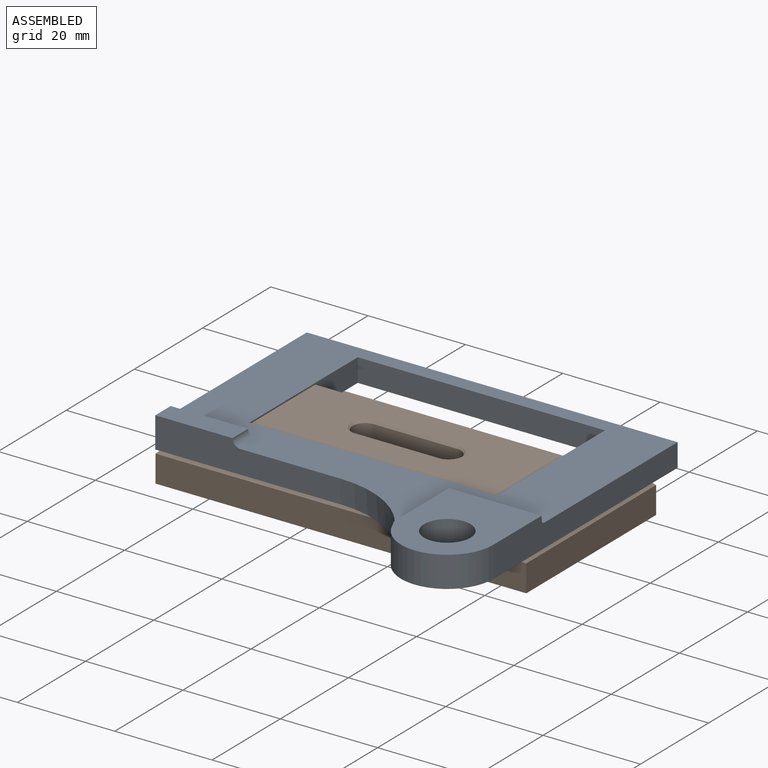
[diagram: assembled view]
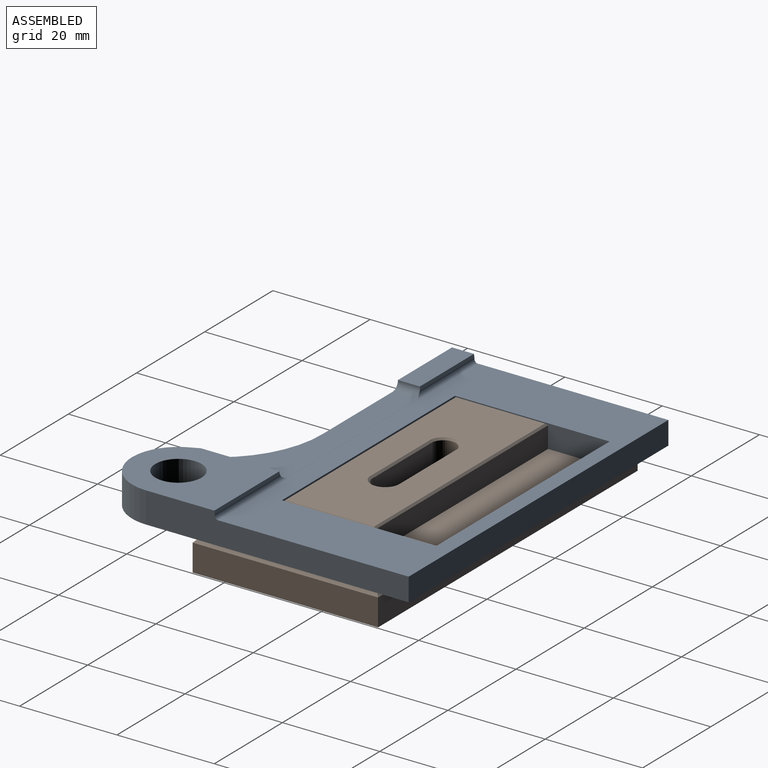
[diagram: assembled view, second angle]
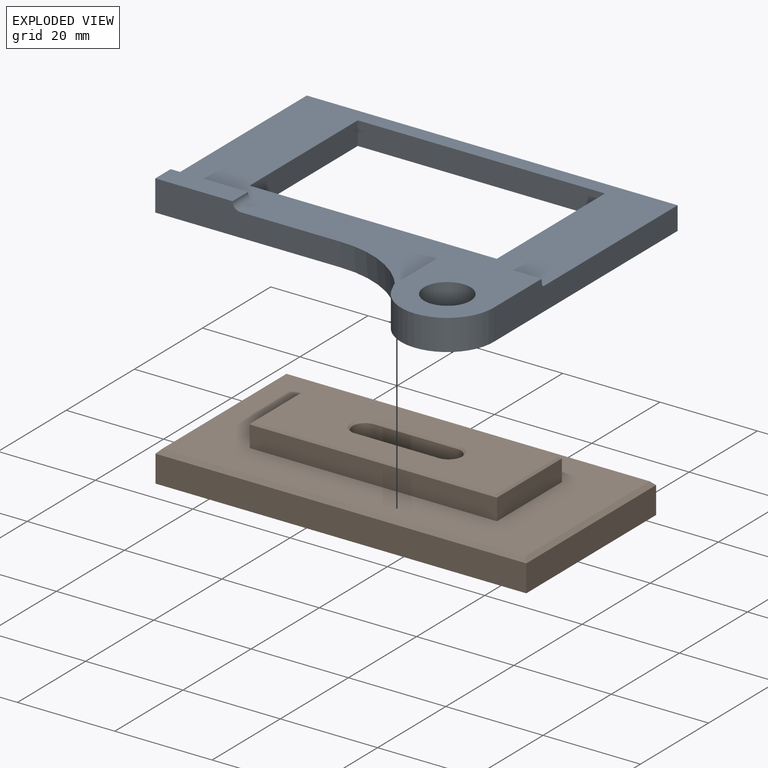
[diagram: exploded view]
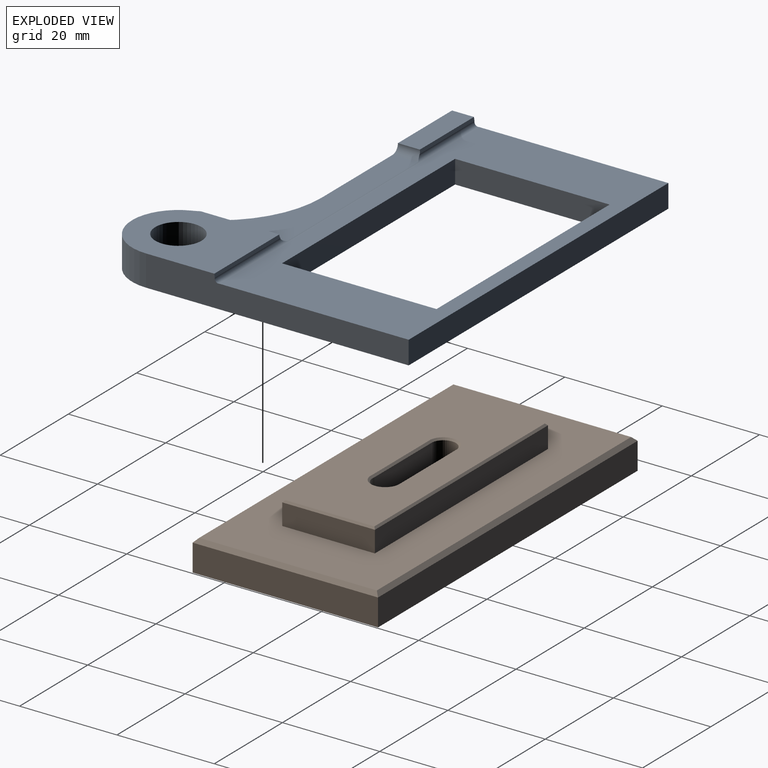
[diagram: exploded view, second angle]
ASSEMBLY  parts=2 mates=2
PART A: 21 faces, bbox 76.2x63.5x6.4 mm
  f0: plane 38.1x6.35mm, normal (0,-1,0), area 207.2mm2, adj f6,f11,f13,f14,f18,f20
  f1: plane 23.56x19.05mm, normal (0,0,1), area 338.9mm2, adj f2,f6,f7,f8,f10,f19
  f2: plane 19.22x0.72mm, normal (0,0.99,0.14), area 13.8mm2, adj f1,f8,f15,f19
  f3: plane 50.8x4.76mm, normal (0,-1,0), area 241.9mm2, adj f4,f12,f14,f16
  f4: plane 31.75x4.76mm, normal (-1,0,0), area 151.2mm2, adj f3,f5,f14,f16
  f5: plane 50.8x4.76mm, normal (0,1,0), area 241.9mm2, adj f4,f12,f14,f16
  f6: cylinder r=21.43mm len=19.78mm, axis (0,0,-1), area 123.9mm2, adj f0,f1,f7,f14,f18,f19
  f7: cylinder r=9.53mm len=18.32mm, axis (0,0,-1), area 166.1mm2, adj f1,f6,f8,f14
  f8: plane 53.98x6.35mm, normal (1,0,0), area 279.6mm2, adj f1,f2,f7,f9,f14,f15,f16
  f9: plane 76.2x4.76mm, normal (0,1,0), area 362.9mm2, adj f8,f11,f14,f16
  f10: cylinder r=4.76mm len=9.53mm, axis (0,0,-1), area 190mm2, adj f1,f14
  f11: plane 44.45x6.35mm, normal (-1,0,0), area 219.1mm2, adj f0,f9,f13,f14,f15,f16,f17
  f12: plane 31.75x4.76mm, normal (1,0,0), area 151.2mm2, adj f3,f5,f14,f16
  f13: plane 15.88x4.51mm, normal (0,0,1), area 71.6mm2, adj f0,f11,f17,f20
  f14: plane 76.2x63.5mm, normal (0,0,-1), area 2090.5mm2, adj f0,f3,f4,f5,f6,f7,f8,f9
  f15: cylinder r=0.76mm len=76.2mm, axis (1,0,0), area 71.8mm2, adj f2,f8,f11,f16,f17,f18,f19,f20
  f16: plane 76.2x38.89mm, normal (0,0,1), area 1350.6mm2, adj f3,f4,f5,f8,f9,f11,f12,f15
  f17: plane 16.05x0.72mm, normal (0,0.99,0.14), area 11.5mm2, adj f11,f13,f15,f20
  f18: plane 38.1x14.17mm, normal (0,0,1), area 243.6mm2, adj f0,f6,f15,f19,f20
  f19: cylinder r=1.59mm len=16.77mm, axis (0,1,0), area 38.3mm2, adj f1,f2,f6,f15,f18
  f20: cylinder r=1.59mm len=5.16mm, axis (0,1,0), area 11.8mm2, adj f0,f13,f15,f17,f18
PART B: 27 faces, bbox 76.2x38.1x11.1 mm
  f0: plane 74.61x36.51mm, normal (0,0,1), area 1756.5mm2, adj f10,f11,f12,f13,f15,f16,f17,f18
  f1: cylinder r=2.56mm len=10.73mm, axis (0,0,1), area 91.1mm2, adj f2,f8,f9,f20
  f2: plane 17.11x10.73mm, normal (0,1,0), area 183.6mm2, adj f1,f3,f9,f22
  f3: cylinder r=2.56mm len=10.73mm, axis (0,0,1), area 81.5mm2, adj f2,f8,f9,f21
  f4: plane 38.1x5.56mm, normal (1,0,0), area 211.7mm2, adj f5,f7,f9,f15
  f5: plane 76.2x5.56mm, normal (0,1,0), area 423.4mm2, adj f4,f6,f9,f16
  f6: plane 38.1x5.56mm, normal (-1,0,0), area 211.7mm2, adj f5,f7,f9,f18
  f7: plane 76.2x5.56mm, normal (0,-1,0), area 423.4mm2, adj f4,f6,f9,f17
  f8: plane 17.11x10.73mm, normal (0,-1,0), area 183.6mm2, adj f1,f3,f9,f19
  f9: plane 76.2x38.1mm, normal (0,0,-1), area 2795.7mm2, adj f1,f2,f3,f4,f5,f6,f7,f8
  f10: plane 19.05x4.38mm, normal (1,0,0), area 83.5mm2, adj f0,f11,f13,f23
  f11: plane 50.8x4.38mm, normal (0,1,0), area 222.6mm2, adj f0,f10,f12,f24
  f12: plane 19.05x4.38mm, normal (-1,0,0), area 83.5mm2, adj f0,f11,f13,f26
  f13: plane 50.8x4.38mm, normal (0,-1,0), area 222.6mm2, adj f0,f10,f12,f25
  f14: plane 50.04x18.29mm, normal (0,0,1), area 788mm2, adj f19,f20,f21,f22,f23,f24,f25,f26
  f15: plane 38.1x0.79mm, normal (0.71,0,0.71), area 41.9mm2, adj f0,f4,f16,f17
  f16: plane 76.2x0.79mm, normal (0,0.71,0.71), area 84.6mm2, adj f0,f5,f15,f18
  f17: plane 76.2x0.79mm, normal (0,-0.71,0.71), area 84.6mm2, adj f0,f7,f15,f18
  f18: plane 38.1x0.79mm, normal (-0.71,0,0.71), area 41.9mm2, adj f0,f6,f16,f17
  f19: plane 17.11x0.38mm, normal (0,-0.71,0.71), area 9.2mm2, adj f8,f14,f20,f21
  f20: cone r=2.56mm half-angle=45deg, axis (0,0,1), area 4.9mm2, adj f1,f14,f19,f22
  f21: cone r=2.56mm half-angle=45deg, axis (0,0,1), area 4.4mm2, adj f3,f14,f19,f22
  f22: plane 17.14x0.38mm, normal (0,0.71,0.71), area 9.2mm2, adj f2,f14,f20,f21
  f23: plane 19.05x0.38mm, normal (0.71,0,0.71), area 10.1mm2, adj f10,f14,f24,f25
  f24: plane 50.8x0.38mm, normal (0,0.71,0.71), area 27.2mm2, adj f11,f14,f23,f26
  f25: plane 50.8x0.38mm, normal (0,-0.71,0.71), area 27.2mm2, adj f13,f14,f23,f26
  f26: plane 19.05x0.38mm, normal (-0.71,0,0.71), area 10.1mm2, adj f12,f14,f24,f25
PLACE A t=(-19.93,8.44,2.7)mm
PLACE B t=(-19.93,5.31,2.7)mm
MATE planar A.f14 <-> B.f0  axis (0,0,-1) through (-16.03,1.51,2.7)mm
MATE planar B.f12 <-> A.f12  axis (-1,0,0) through (-45.33,5.31,4.9)mm
